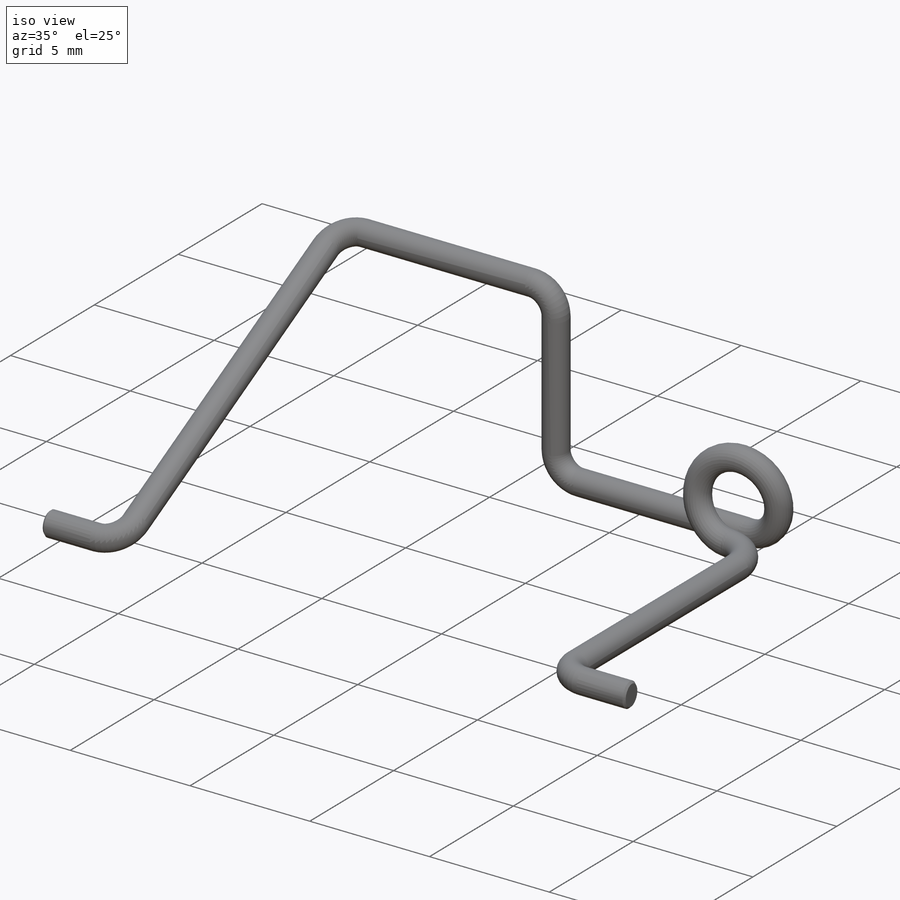
[diagram: iso view]
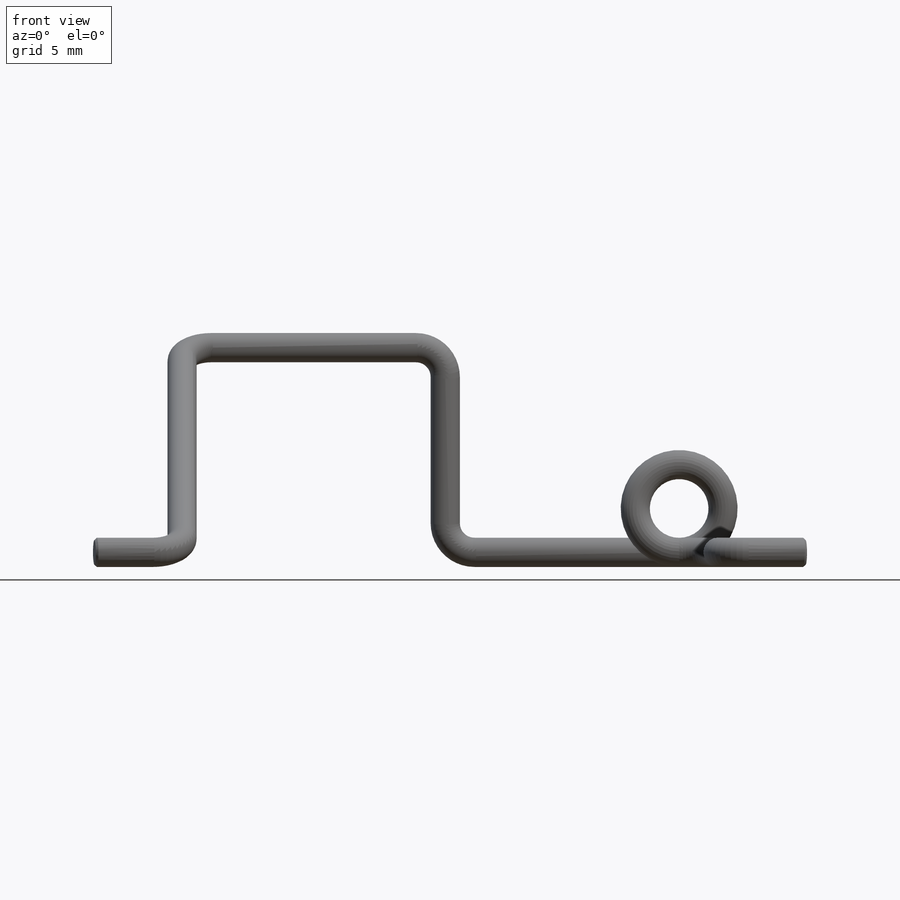
[diagram: front view]
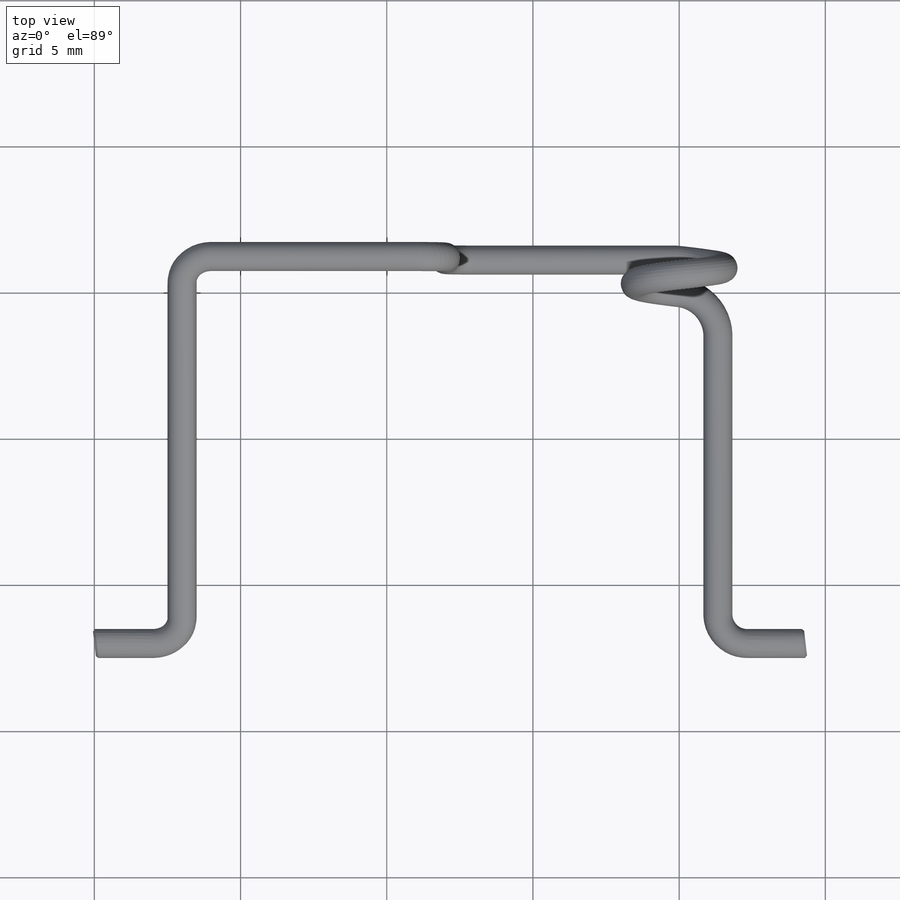
[diagram: top view]
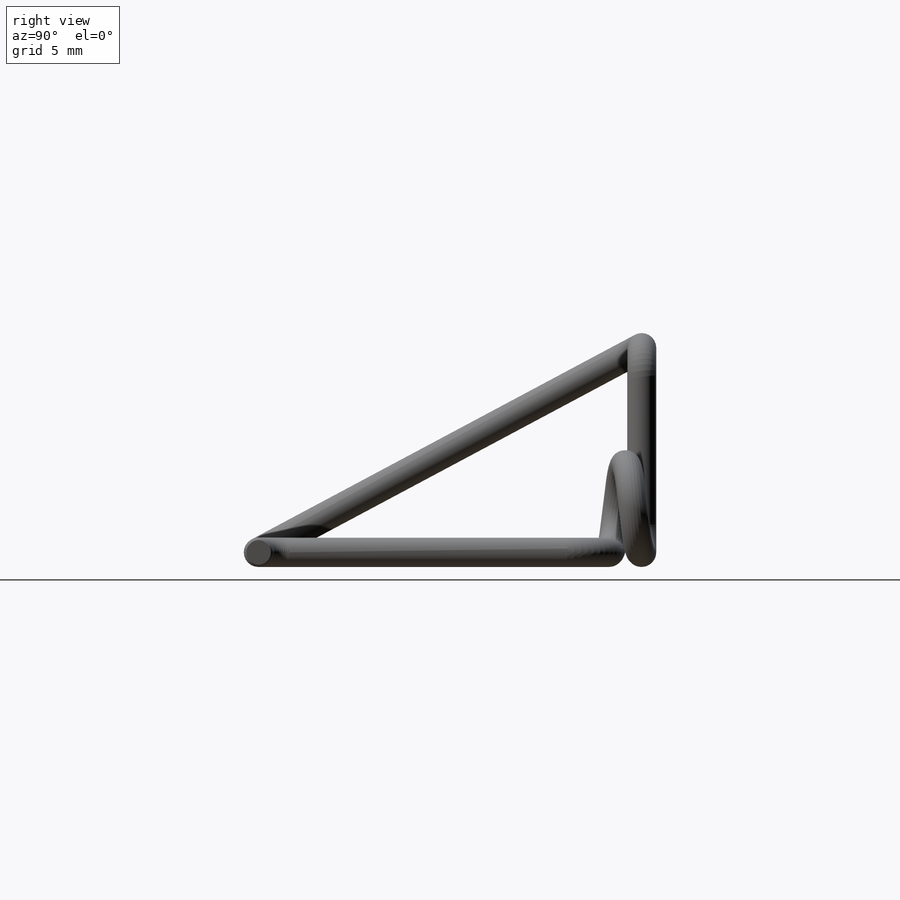
[diagram: right view]
SOLIDWORKS PART (.sldprt)
format: sldprt  version: not decoded by parser v0  size: 294,400 bytes
history: native  units: mm
features: sketch x10, sweep x5, plane x2, material x1, helix x1, chamfer x1 (+15 scaffold rows collapsed)
feature tree (35):
  scaffold x15  (default folders/planes/origin — collapsed)
  material  "Material <not specified>"
  sketch  "Sketch2"  dims[D1=3.0mm]
  helix  "Helix/Spiral1"  Pitch=1.1mm
  sketch  "Sketch3"  dims[D1=1.5mm D2=1.0mm D3=2.0mm D4=12.0mm]
  sketch  "Sketch4"  dims[D1=2.0mm]
  plane  "Plane1"
  sketch  "Sketch5"  dims[D1=1.0mm D2=7.0mm D3=8.0mm D4=16.0mm]
  plane  "Plane2"
  sketch  "Sketch6"  dims[D1=1.0mm]
  sketch  "Sketch7"  dims[D1=1.0mm]
  sweep  "Sweep4"
  sketch  "Sketch8"  dims[D1=0.0mm]
  sweep  "Sweep5"
  sketch  "Sketch9"  dims[D1=0.0mm]
  sweep  "Sweep6"
  sketch  "Sketch10"  dims[D1=0.0mm]
  sweep  "Sweep7"
  sketch  "Sketch11"  dims[D1=0.0mm]
  sweep  "Sweep8"
  chamfer  "Chamfer1"  Distance=0.1mm Angle=45deg
decode coverage: 12 of 17 modeling features carry decoded parameters
summary: profile_refs inferred from adjacent sketches, not decoded
note: suppression state not decoded; provenance and decode notes live in map.json
